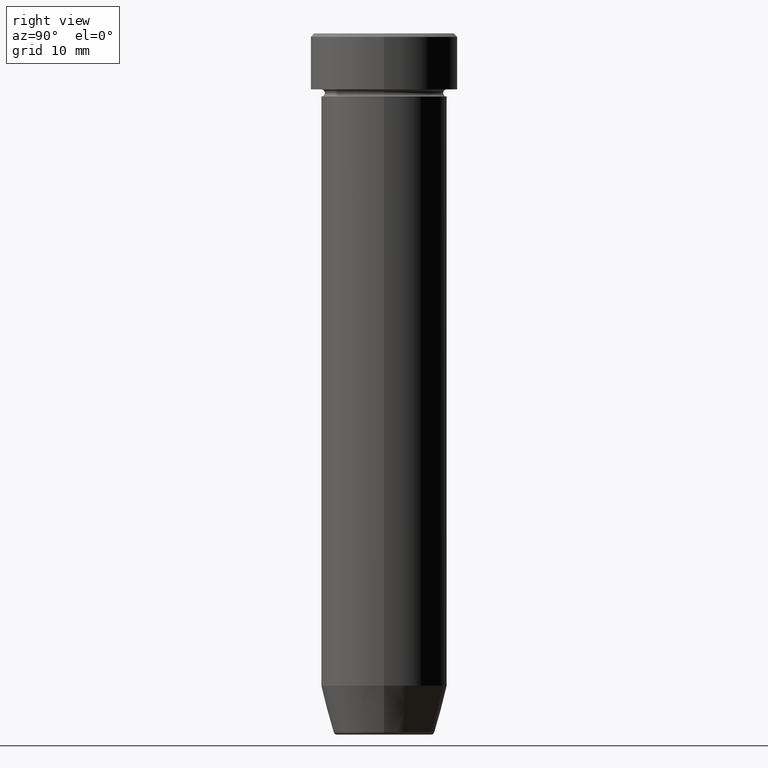
[diagram: clean part render]
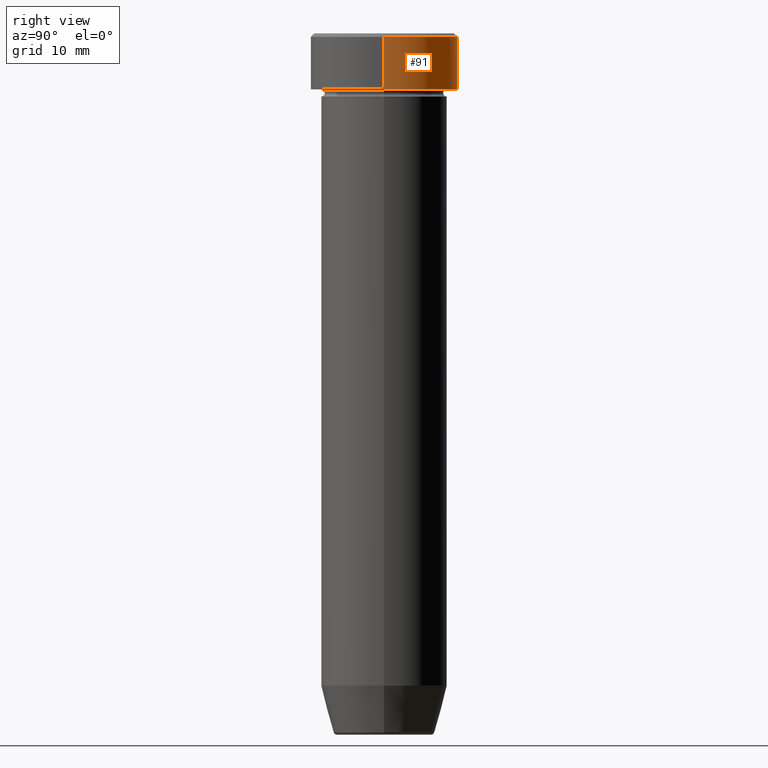
[diagram: same view with one face highlighted and labeled with its STEP entity id]
A machine part, right view. The second image highlights one B-rep face of the part: STEP entity #91.
In plain terms, the highlighted cylindrical surface (partial cylindrical patch) has radius 10.5 mm, axis along (-0, -0, 1).
Its self-contained STEP definition (entity closure, byte-faithful):
#3 = EDGE_CURVE ( 'NONE', #588, #248, #458, .T. ) ;
#38 = CARTESIAN_POINT ( 'NONE',  ( 10.50000000000000000, 0.000000000000000000, -0.5000000000000023315 ) ) ;
#71 = EDGE_CURVE ( 'NONE', #261, #539, #591, .T. ) ;
#91 = ADVANCED_FACE ( 'NONE', ( #275 ), #462, .T. ) ;
#154 = DIRECTION ( 'NONE',  ( 1.000000000000000000, 0.000000000000000000, 0.000000000000000000 ) ) ;
#171 = EDGE_CURVE ( 'NONE', #261, #588, #521, .T. ) ;
#181 = DIRECTION ( 'NONE',  ( -0.000000000000000000, -0.000000000000000000, 1.000000000000000000 ) ) ;
#195 = DIRECTION ( 'NONE',  ( -0.000000000000000000, -0.000000000000000000, 1.000000000000000000 ) ) ;
#203 = CARTESIAN_POINT ( 'NONE',  ( -10.50000000000000000, 1.285879139104720831E-15, -0.5000000000000023315 ) ) ;
#207 = CARTESIAN_POINT ( 'NONE',  ( 10.50000000000000000, 0.000000000000000000, -8.000000000000000000 ) ) ;
#230 = DIRECTION ( 'NONE',  ( 1.000000000000000000, 0.000000000000000000, 0.000000000000000000 ) ) ;
#248 = VERTEX_POINT ( 'NONE', #203 ) ;
#249 = VECTOR ( 'NONE', #181, 1000.000000000000000 ) ;
#261 = VERTEX_POINT ( 'NONE', #207 ) ;
#262 = CIRCLE ( 'NONE', #380, 10.50000000000000000 ) ;
#265 = ORIENTED_EDGE ( 'NONE', *, *, #71, .F. ) ;
#275 = FACE_OUTER_BOUND ( 'NONE', #395, .T. ) ;
#290 = ORIENTED_EDGE ( 'NONE', *, *, #3, .T. ) ;
#300 = DIRECTION ( 'NONE',  ( -0.000000000000000000, -0.000000000000000000, 1.000000000000000000 ) ) ;
#303 = AXIS2_PLACEMENT_3D ( 'NONE', #552, #548, #230 ) ;
#328 = EDGE_CURVE ( 'NONE', #248, #539, #262, .T. ) ;
#346 = CARTESIAN_POINT ( 'NONE',  ( 0.000000000000000000, 0.000000000000000000, -0.5000000000000023315 ) ) ;
#378 = CARTESIAN_POINT ( 'NONE',  ( 10.50000000000000000, 0.000000000000000000, 0.000000000000000000 ) ) ;
#380 = AXIS2_PLACEMENT_3D ( 'NONE', #346, #456, #402 ) ;
#382 = CARTESIAN_POINT ( 'NONE',  ( 0.000000000000000000, 0.000000000000000000, -8.000000000000000000 ) ) ;
#395 = EDGE_LOOP ( 'NONE', ( #523, #290, #439, #265 ) ) ;
#402 = DIRECTION ( 'NONE',  ( 1.000000000000000000, 0.000000000000000000, 0.000000000000000000 ) ) ;
#411 = CARTESIAN_POINT ( 'NONE',  ( -10.50000000000000000, 1.285879139104720831E-15, 0.000000000000000000 ) ) ;
#439 = ORIENTED_EDGE ( 'NONE', *, *, #328, .T. ) ;
#456 = DIRECTION ( 'NONE',  ( 0.000000000000000000, 0.000000000000000000, -1.000000000000000000 ) ) ;
#458 = LINE ( 'NONE', #411, #249 ) ;
#460 = VECTOR ( 'NONE', #195, 1000.000000000000000 ) ;
#462 = CYLINDRICAL_SURFACE ( 'NONE', #303, 10.50000000000000000 ) ;
#521 = CIRCLE ( 'NONE', #566, 10.50000000000000000 ) ;
#523 = ORIENTED_EDGE ( 'NONE', *, *, #171, .T. ) ;
#539 = VERTEX_POINT ( 'NONE', #38 ) ;
#545 = CARTESIAN_POINT ( 'NONE',  ( -10.50000000000000000, 1.285879139104720831E-15, -8.000000000000000000 ) ) ;
#548 = DIRECTION ( 'NONE',  ( -0.000000000000000000, -0.000000000000000000, 1.000000000000000000 ) ) ;
#552 = CARTESIAN_POINT ( 'NONE',  ( 0.000000000000000000, 0.000000000000000000, 0.000000000000000000 ) ) ;
#566 = AXIS2_PLACEMENT_3D ( 'NONE', #382, #300, #154 ) ;
#588 = VERTEX_POINT ( 'NONE', #545 ) ;
#591 = LINE ( 'NONE', #378, #460 ) ;